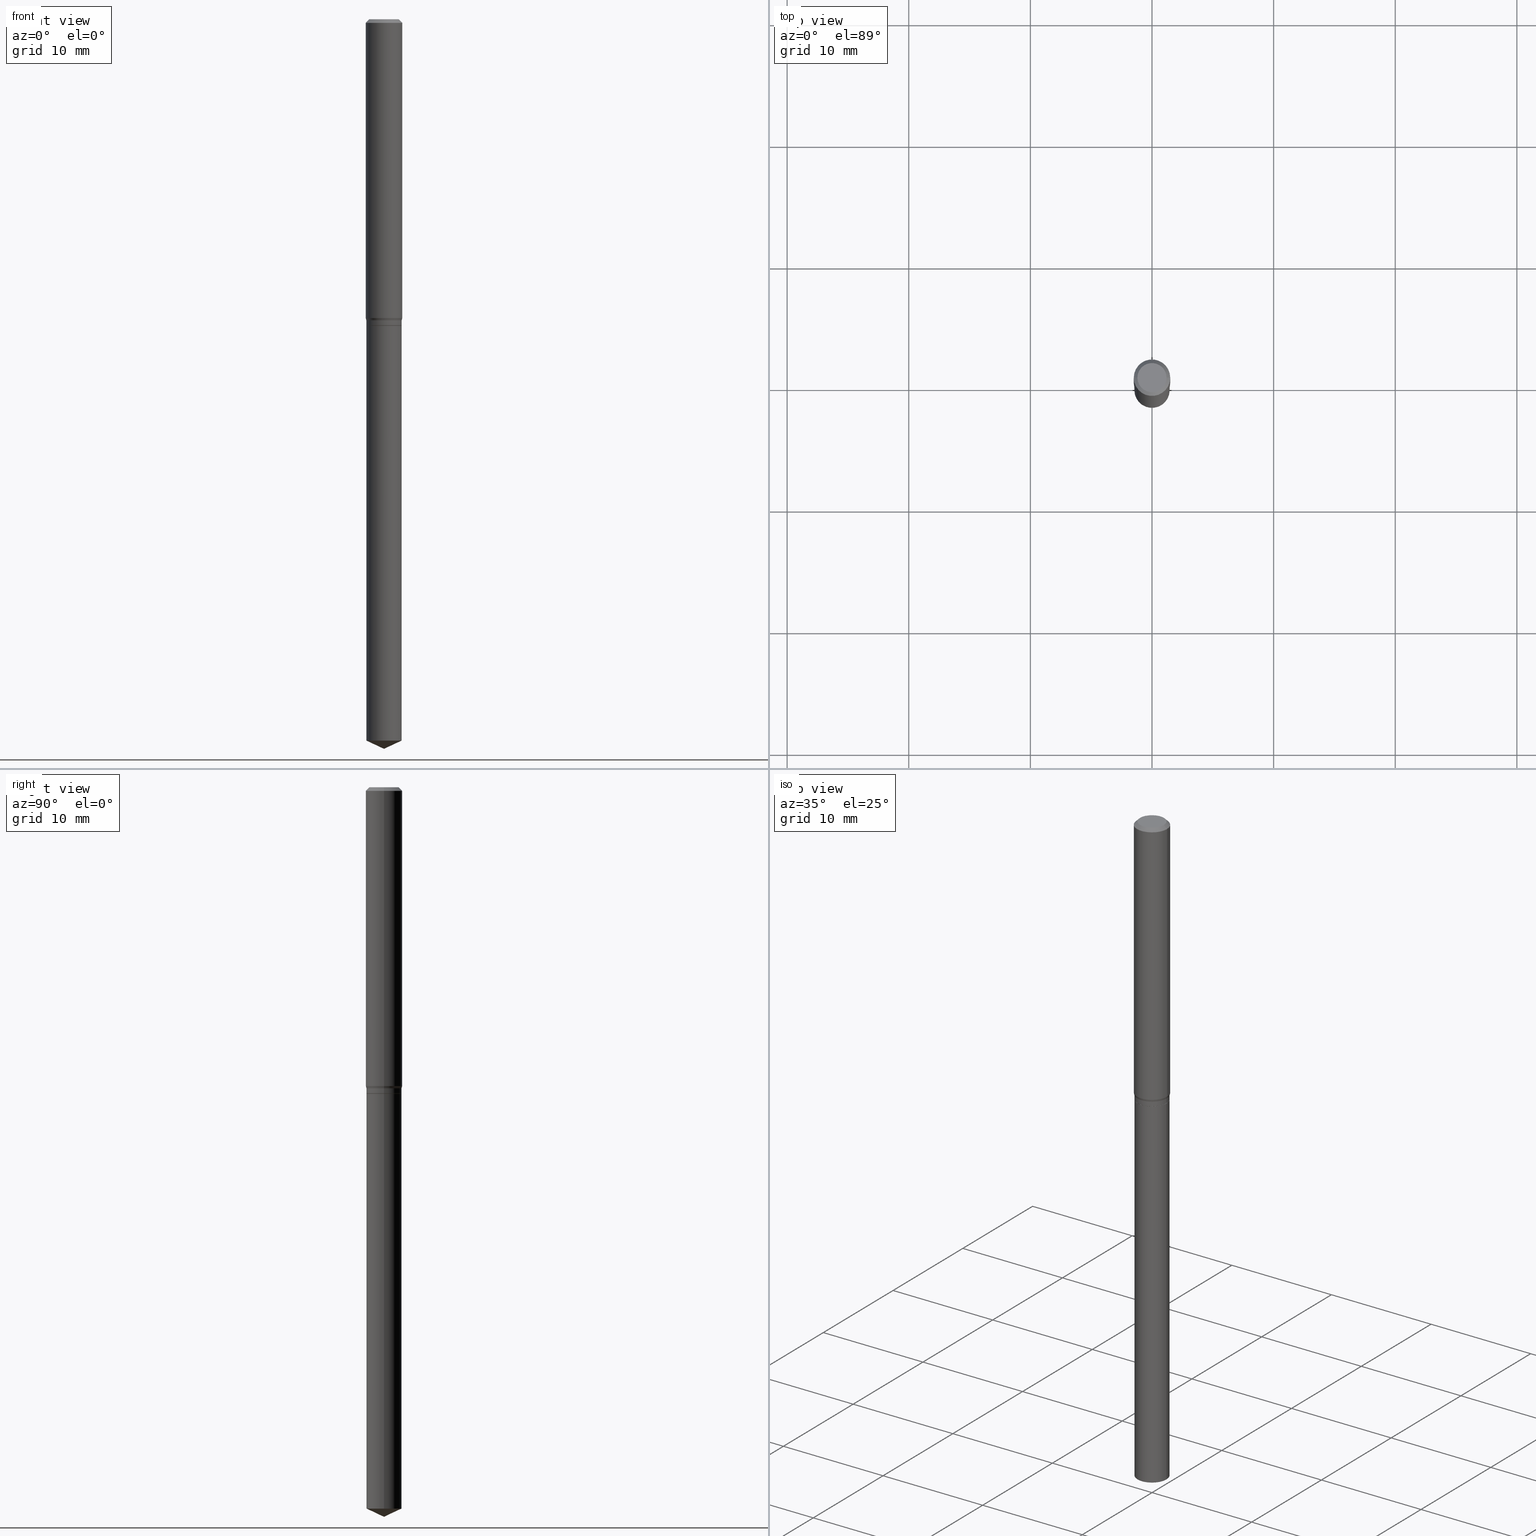
[diagram: canonical four-view strip — front | top / right | iso, engineering-drawing reading convention]
A machine part, canonical four-view strip (front | top / right | iso — engineering-drawing reading convention). The complete STEP part file that produces these views, byte-faithful:
ISO-10303-21;
HEADER;
FILE_DESCRIPTION (( 'STEP AP203' ),
    '1' );
FILE_NAME ('08406.STEP',
    '2024-04-24T14:58:37',
    ( '' ),
    ( '' ),
    'SwSTEP 2.0',
    'SolidWorks 2023',
    '' );
FILE_SCHEMA (( 'CONFIG_CONTROL_DESIGN' ));
ENDSEC;

DATA;
#1 = CYLINDRICAL_SURFACE ( 'NONE', #109, 0.05709999999999999798 ) ;
#2 = AXIS2_PLACEMENT_3D ( 'NONE', #426, #90, #272 ) ;
#3 = CYLINDRICAL_SURFACE ( 'NONE', #239, 0.05709999999999998410 ) ;
#4 = ORIENTED_EDGE ( 'NONE', *, *, #249, .T. ) ;
#5 = CARTESIAN_POINT ( 'NONE',  ( 0.05904999999999999832, -4.463468013801466955E-16, -0.01181000000000007218 ) ) ;
#6 = ORIENTED_EDGE ( 'NONE', *, *, #17, .F. ) ;
#7 = EDGE_LOOP ( 'NONE', ( #472, #25, #91, #388 ) ) ;
#8 = DIRECTION ( 'NONE',  ( 1.000000000000000000, -6.982962677686266711E-15, 0.000000000000000000 ) ) ;
#9 = CARTESIAN_POINT ( 'NONE',  ( 2.424437774451943550E-29, -3.461454599329093355E-15, -0.9913999999999996149 ) ) ;
#10 = EDGE_CURVE ( 'NONE', #432, #235, #270, .T. ) ;
#11 = PERSON_AND_ORGANIZATION_ROLE ( 'classification_officer' ) ;
#12 = LOCAL_TIME ( 10, 58, 37.00000000000000000, #464 ) ;
#13 = VECTOR ( 'NONE', #385, 39.37007874015748143 ) ;
#14 = ORIENTED_EDGE ( 'NONE', *, *, #451, .F. ) ;
#15 = PLANE ( 'NONE',  #460 ) ;
#16 = CC_DESIGN_DATE_AND_TIME_ASSIGNMENT ( #81, #420, ( #202 ) ) ;
#17 = EDGE_CURVE ( 'NONE', #242, #396, #438, .T. ) ;
#18 = ORIENTED_EDGE ( 'NONE', *, *, #57, .T. ) ;
#19 = PERSON_AND_ORGANIZATION ( #79, #424 ) ;
#20 = FACE_OUTER_BOUND ( 'NONE', #83, .T. ) ;
#21 = CIRCLE ( 'NONE', #179, 0.05659999999999999060 ) ;
#22 = DIRECTION ( 'NONE',  ( -2.445468806185136597E-29, 3.491481338843145583E-15, 1.000000000000000000 ) ) ;
#23 = AXIS2_PLACEMENT_3D ( 'NONE', #9, #345, #115 ) ;
#24 = DIRECTION ( 'NONE',  ( 0.000000000000000000, 0.000000000000000000, 1.000000000000000000 ) ) ;
#25 = ORIENTED_EDGE ( 'NONE', *, *, #10, .T. ) ;
#26 = APPLICATION_CONTEXT ( 'configuration controlled 3d designs of mechanical parts and assemblies' ) ;
#27 = DIRECTION ( 'NONE',  ( 1.000000000000000000, -6.982962677686261977E-15, 0.000000000000000000 ) ) ;
#28 = EDGE_CURVE ( 'NONE', #418, #160, #77, .T. ) ;
#29 = CC_DESIGN_APPROVAL ( #415, ( #341 ) ) ;
#30 = AXIS2_PLACEMENT_3D ( 'NONE', #66, #189, #301 ) ;
#31 = PERSON_AND_ORGANIZATION ( #79, #424 ) ;
#32 = AXIS2_PLACEMENT_3D ( 'NONE', #191, #378, #34 ) ;
#33 = DIRECTION ( 'NONE',  ( -2.445468806185136597E-29, 3.491481338843145583E-15, 1.000000000000000000 ) ) ;
#34 = DIRECTION ( 'NONE',  ( -1.000000000000000000, 6.982962677686265922E-15, -4.876176775795935793E-29 ) ) ;
#35 = ADVANCED_FACE ( 'NONE', ( #20 ), #292, .T. ) ;
#36 = DIRECTION ( 'NONE',  ( 1.000000000000000000, -6.982962677686266711E-15, 0.000000000000000000 ) ) ;
#37 = CARTESIAN_POINT ( 'NONE',  ( -0.04724000000000000421, 3.504923541997677355E-16, -3.380025165670481712E-19 ) ) ;
#38 = EDGE_CURVE ( 'NONE', #160, #418, #97, .T. ) ;
#39 = CIRCLE ( 'NONE', #321, 0.05904999999999999832 ) ;
#40 = DIRECTION ( 'NONE',  ( 1.000000000000000000, -6.982962677686259611E-15, 0.000000000000000000 ) ) ;
#41 = DIRECTION ( 'NONE',  ( -1.000000000000000000, 6.982962677686265922E-15, -4.876176775795935793E-29 ) ) ;
#42 = ORIENTED_EDGE ( 'NONE', *, *, #347, .T. ) ;
#43 = CARTESIAN_POINT ( 'NONE',  ( -0.05904999999999999832, -1.290085090285191875E-15, -0.01181000000000007218 ) ) ;
#44 = ORIENTED_EDGE ( 'NONE', *, *, #159, .T. ) ;
#45 = DIRECTION ( 'NONE',  ( -2.445468806185136597E-29, 3.491481338843145583E-15, 1.000000000000000000 ) ) ;
#46 = DIRECTION ( 'NONE',  ( -2.445468806185136597E-29, 3.491481338843145583E-15, 1.000000000000000000 ) ) ;
#47 = APPROVAL_ROLE ( '' ) ;
#48 = EDGE_CURVE ( 'NONE', #356, #351, #323, .T. ) ;
#49 = ORIENTED_EDGE ( 'NONE', *, *, #89, .F. ) ;
#50 = CARTESIAN_POINT ( 'NONE',  ( 0.05905000000000006077, -4.123439461173744764E-16, 2.879382386107503023E-30 ) ) ;
#51 = PERSON_AND_ORGANIZATION ( #79, #424 ) ;
#52 = DIRECTION ( 'NONE',  ( 1.000000000000000000, -6.982962677686265922E-15, 4.876176775795935793E-29 ) ) ;
#53 = PRODUCT_DEFINITION_SHAPE ( 'NONE', 'NONE',  #456 ) ;
#54 = APPROVAL_ROLE ( '' ) ;
#55 = CARTESIAN_POINT ( 'NONE',  ( 2.425660508855035791E-29, -3.463200339998514464E-15, -0.9918999999999995598 ) ) ;
#56 = CARTESIAN_POINT ( 'NONE',  ( 2.888098660104664204E-31, -4.123439461173780263E-17, -0.01181000000000007218 ) ) ;
#57 = EDGE_CURVE ( 'NONE', #235, #432, #21, .T. ) ;
#58 = CIRCLE ( 'NONE', #264, 0.05904999999999999832 ) ;
#59 = ORIENTED_EDGE ( 'NONE', *, *, #139, .T. ) ;
#60 = PERSON_AND_ORGANIZATION ( #79, #424 ) ;
#61 = ORIENTED_EDGE ( 'NONE', *, *, #442, .T. ) ;
#62 = CARTESIAN_POINT ( 'NONE',  ( 8.265746106709734507E-48, -1.180129479067563789E-33, -3.380025165646692144E-19 ) ) ;
#63 = ORIENTED_EDGE ( 'NONE', *, *, #252, .F. ) ;
#64 = DIRECTION ( 'NONE',  ( 1.000000000000000000, -6.982962677686266711E-15, 0.000000000000000000 ) ) ;
#65 = CARTESIAN_POINT ( 'NONE',  ( 2.366046095294905252E-29, -3.378086756891326980E-15, -0.9675225009252403918 ) ) ;
#66 = CARTESIAN_POINT ( 'NONE',  ( 2.425660508855035791E-29, -3.463200339998514464E-15, -0.9918999999999995598 ) ) ;
#67 = DIRECTION ( 'NONE',  ( 0.7071067811865173747, -2.468850131081940727E-15, 0.7071067811865776598 ) ) ;
#68 = DIRECTION ( 'NONE',  ( 1.000000000000000000, -6.982962677686266711E-15, 0.000000000000000000 ) ) ;
#69 = CARTESIAN_POINT ( 'NONE',  ( 0.05709999999999998410, -3.987271688958857132E-16, 2.784296938979478528E-30 ) ) ;
#70 = DIMENSIONAL_EXPONENTS ( 1.000000000000000000, 0.000000000000000000, 0.000000000000000000, 0.000000000000000000, 0.000000000000000000, 0.000000000000000000, 0.000000000000000000 ) ;
#71 = AXIS2_PLACEMENT_3D ( 'NONE', #449, #149, #68 ) ;
#72 = CARTESIAN_POINT ( 'NONE',  ( 2.425660508855036352E-29, -3.463200339998515253E-15, -0.9918999999999997819 ) ) ;
#73 = FACE_OUTER_BOUND ( 'NONE', #129, .T. ) ;
#74 = CARTESIAN_POINT ( 'NONE',  ( 0.05659999999999999060, -3.858436027555557071E-15, -0.9918999999999995598 ) ) ;
#75 = CC_DESIGN_APPROVAL ( #278, ( #456 ) ) ;
#76 = CARTESIAN_POINT ( 'NONE',  ( 2.425660508855035791E-29, -3.463200339998514464E-15, -0.9918999999999995598 ) ) ;
#77 = CIRCLE ( 'NONE', #212, 0.05905000000000011628 ) ;
#78 = ORIENTED_EDGE ( 'NONE', *, *, #192, .T. ) ;
#79 = PERSON ( 'UNSPECIFIED', 'UNSPECIFIED', 'UNSPECIFIED', ('UNSPECIFIED'), ('UNSPECIFIED'), ('UNSPECIFIED') ) ;
#80 = DIRECTION ( 'NONE',  ( 1.000000000000000000, -6.982962677686266711E-15, 4.876185090822587894E-29 ) ) ;
#81 = DATE_AND_TIME ( #417, #476 ) ;
#82 = EDGE_CURVE ( 'NONE', #432, #402, #446, .T. ) ;
#83 = EDGE_LOOP ( 'NONE', ( #465, #125, #168, #480 ) ) ;
#84 = CARTESIAN_POINT ( 'NONE',  ( -0.05709999999999998410, -7.748194254043186871E-15, -2.335373832719350062 ) ) ;
#85 = EDGE_LOOP ( 'NONE', ( #277, #314, #327 ) ) ;
#86 = VECTOR ( 'NONE', #236, 39.37007874015748854 ) ;
#87 = LINE ( 'NONE', #419, #162 ) ;
#88 = CIRCLE ( 'NONE', #370, 0.05709999999999999798 ) ;
#89 = EDGE_CURVE ( 'NONE', #235, #363, #487, .T. ) ;
#90 = DIRECTION ( 'NONE',  ( -2.445468806185136597E-29, 3.491481338843145583E-15, 1.000000000000000000 ) ) ;
#91 = ORIENTED_EDGE ( 'NONE', *, *, #89, .T. ) ;
#92 = EDGE_CURVE ( 'NONE', #351, #371, #224, .T. ) ;
#93 = PRODUCT_RELATED_PRODUCT_CATEGORY ( 'detail', '', ( #461 ) ) ;
#94 = ORIENTED_EDGE ( 'NONE', *, *, #17, .T. ) ;
#95 = FACE_OUTER_BOUND ( 'NONE', #244, .T. ) ;
#96 = CALENDAR_DATE ( 2024, 24, 4 ) ;
#97 = CIRCLE ( 'NONE', #229, 0.05905000000000011628 ) ;
#98 = ORIENTED_EDGE ( 'NONE', *, *, #401, .F. ) ;
#99 = MECHANICAL_CONTEXT ( 'NONE', #184, 'mechanical' ) ;
#100 = ADVANCED_FACE ( 'NONE', ( #150 ), #247, .T. ) ;
#101 = ORIENTED_EDGE ( 'NONE', *, *, #82, .T. ) ;
#102 = DIRECTION ( 'NONE',  ( -2.445468806185136597E-29, 3.491481338843145583E-15, 1.000000000000000000 ) ) ;
#103 = ORIENTED_EDGE ( 'NONE', *, *, #322, .F. ) ;
#104 = CC_DESIGN_APPROVAL ( #433, ( #202 ) ) ;
#105 = FACE_OUTER_BOUND ( 'NONE', #7, .T. ) ;
#106 = CC_DESIGN_DATE_AND_TIME_ASSIGNMENT ( #389, #201, ( #456 ) ) ;
#107 = DIRECTION ( 'NONE',  ( -2.445468806185136597E-29, 3.491481338843145583E-15, 1.000000000000000000 ) ) ;
#108 = VECTOR ( 'NONE', #392, 39.37007874015748854 ) ;
#109 = AXIS2_PLACEMENT_3D ( 'NONE', #154, #454, #113 ) ;
#110 = EDGE_CURVE ( 'NONE', #363, #133, #489, .T. ) ;
#111 = DIRECTION ( 'NONE',  ( -2.445468806185136597E-29, 3.491481338843145583E-15, 1.000000000000000000 ) ) ;
#112 = MANIFOLD_SOLID_BREP ( 'Body-Move/Copy2[2]', #485 ) ;
#113 = DIRECTION ( 'NONE',  ( 1.000000000000000000, -6.982962677686268288E-15, 0.000000000000000000 ) ) ;
#114 = MANIFOLD_SOLID_BREP ( 'Body-Move/Copy2[1]', #220 ) ;
#115 = DIRECTION ( 'NONE',  ( 1.000000000000000000, -6.982962677686269866E-15, 0.000000000000000000 ) ) ;
#116 = VECTOR ( 'NONE', #473, 39.37007874015748143 ) ;
#117 = ORIENTED_EDGE ( 'NONE', *, *, #28, .T. ) ;
#118 = ADVANCED_FACE ( 'NONE', ( #226 ), #376, .F. ) ;
#119 = DIRECTION ( 'NONE',  ( -2.445468806185136877E-29, 3.491481338843145188E-15, 1.000000000000000000 ) ) ;
#120 = VECTOR ( 'NONE', #232, 39.37007874015748143 ) ;
#121 = DIRECTION ( 'NONE',  ( -2.445468806185136597E-29, 3.491481338843145583E-15, 1.000000000000000000 ) ) ;
#122 = EDGE_LOOP ( 'NONE', ( #222, #42, #207, #288 ) ) ;
#123 = CARTESIAN_POINT ( 'NONE',  ( 0.000000000000000000, 0.000000000000000000, 0.000000000000000000 ) ) ;
#124 = ADVANCED_FACE ( 'NONE', ( #452 ), #478, .T. ) ;
#125 = ORIENTED_EDGE ( 'NONE', *, *, #165, .T. ) ;
#126 = LINE ( 'NONE', #50, #120 ) ;
#127 = CALENDAR_DATE ( 2024, 24, 4 ) ;
#128 = ADVANCED_FACE ( 'NONE', ( #186 ), #412, .F. ) ;
#129 = EDGE_LOOP ( 'NONE', ( #274, #61, #457, #14 ) ) ;
#130 = DIRECTION ( 'NONE',  ( -2.445468806185136597E-29, 3.491481338843145583E-15, 1.000000000000000000 ) ) ;
#131 = AXIS2_PLACEMENT_3D ( 'NONE', #76, #381, #204 ) ;
#132 = EDGE_CURVE ( 'NONE', #133, #253, #271, .T. ) ;
#133 = VERTEX_POINT ( 'NONE', #273 ) ;
#134 =( CONVERSION_BASED_UNIT ( 'INCH', #326 ) LENGTH_UNIT ( ) NAMED_UNIT ( #70 ) );
#135 = ORIENTED_EDGE ( 'NONE', *, *, #192, .F. ) ;
#136 = FACE_OUTER_BOUND ( 'NONE', #172, .T. ) ;
#137 = COORDINATED_UNIVERSAL_TIME_OFFSET ( 5, 0, .BEHIND. ) ;
#138 = ORIENTED_EDGE ( 'NONE', *, *, #406, .T. ) ;
#139 = EDGE_CURVE ( 'NONE', #242, #344, #283, .T. ) ;
#140 = AXIS2_PLACEMENT_3D ( 'NONE', #72, #225, #337 ) ;
#141 = ORIENTED_EDGE ( 'NONE', *, *, #241, .F. ) ;
#142 = DIRECTION ( 'NONE',  ( 2.445468806185136597E-29, -3.491481338843145583E-15, -1.000000000000000000 ) ) ;
#143 = APPROVAL_DATE_TIME ( #298, #433 ) ;
#144 = DIRECTION ( 'NONE',  ( -2.445468806185136597E-29, 3.491481338843145583E-15, 1.000000000000000000 ) ) ;
#145 = DIRECTION ( 'NONE',  ( -1.000000000000000000, 6.982962677686266711E-15, 0.000000000000000000 ) ) ;
#146 = DESIGN_CONTEXT ( 'detailed design', #26, 'design' ) ;
#147 = CC_DESIGN_PERSON_AND_ORGANIZATION_ASSIGNMENT ( #467, #11, ( #202 ) ) ;
#148 = DIRECTION ( 'NONE',  ( 1.000000000000000000, -6.982962677686266711E-15, 0.000000000000000000 ) ) ;
#149 = DIRECTION ( 'NONE',  ( -2.445468806185136597E-29, 3.491481338843145583E-15, 1.000000000000000000 ) ) ;
#150 = FACE_OUTER_BOUND ( 'NONE', #245, .T. ) ;
#151 = LINE ( 'NONE', #373, #290 ) ;
#152 = AXIS2_PLACEMENT_3D ( 'NONE', #62, #293, #208 ) ;
#153 = CIRCLE ( 'NONE', #2, 0.05709999999999997716 ) ;
#154 = CARTESIAN_POINT ( 'NONE',  ( 2.425660508855036352E-29, -3.463200339998515253E-15, -0.9918999999999997819 ) ) ;
#155 = DIRECTION ( 'NONE',  ( 0.7071067811865453523, -7.319954787623248157E-15, -0.7071067811865496822 ) ) ;
#156 = ORIENTED_EDGE ( 'NONE', *, *, #57, .F. ) ;
#157 = CARTESIAN_POINT ( 'NONE',  ( 0.05904999999999999832, -4.535783407291118600E-16, -0.01181000000000007218 ) ) ;
#158 = CARTESIAN_POINT ( 'NONE',  ( 2.383842992269271566E-29, -3.403496009104299042E-15, -0.9748000000000002219 ) ) ;
#159 = EDGE_CURVE ( 'NONE', #351, #307, #342, .T. ) ;
#160 = VERTEX_POINT ( 'NONE', #300 ) ;
#161 = DIRECTION ( 'NONE',  ( 1.000000000000000000, -6.982962677686268288E-15, 0.000000000000000000 ) ) ;
#162 = VECTOR ( 'NONE', #119, 39.37007874015748143 ) ;
#163 = ORIENTED_EDGE ( 'NONE', *, *, #331, .T. ) ;
#164 = DIRECTION ( 'NONE',  ( 1.000000000000000000, -6.982962677686266711E-15, 4.876176775795935793E-29 ) ) ;
#165 = EDGE_CURVE ( 'NONE', #402, #253, #151, .T. ) ;
#166 = EDGE_LOOP ( 'NONE', ( #59, #138 ) ) ;
#167 = CARTESIAN_POINT ( 'NONE',  ( 5.776197320209293305E-29, -8.246878922347511025E-15, -2.362000000000000099 ) ) ;
#168 = ORIENTED_EDGE ( 'NONE', *, *, #132, .F. ) ;
#169 = FACE_OUTER_BOUND ( 'NONE', #210, .T. ) ;
#170 = VECTOR ( 'NONE', #372, 39.37007874015748143 ) ;
#171 = CONICAL_SURFACE ( 'NONE', #71, 84.42940631927518780, 1.134464013796319781 ) ;
#172 = EDGE_LOOP ( 'NONE', ( #284, #163, #183, #6 ) ) ;
#173 = DIRECTION ( 'NONE',  ( 1.000000000000000000, -6.982962677686266711E-15, 4.876176775795935793E-29 ) ) ;
#174 = DIRECTION ( 'NONE',  ( 1.000000000000000000, -6.982962677686269077E-15, 0.000000000000000000 ) ) ;
#175 = APPROVAL_STATUS ( 'not_yet_approved' ) ;
#176 = ORIENTED_EDGE ( 'NONE', *, *, #312, .T. ) ;
#177 = APPLICATION_PROTOCOL_DEFINITION ( 'international standard', 'config_control_design', 1994, #26 ) ;
#178 = APPROVAL_PERSON_ORGANIZATION ( #19, #278, #329 ) ;
#179 = AXIS2_PLACEMENT_3D ( 'NONE', #55, #361, #408 ) ;
#180 = ORIENTED_EDGE ( 'NONE', *, *, #252, .T. ) ;
#181 = DIRECTION ( 'NONE',  ( 1.000000000000000000, 0.000000000000000000, 0.000000000000000000 ) ) ;
#182 = ADVANCED_FACE ( 'NONE', ( #105 ), #194, .T. ) ;
#183 = ORIENTED_EDGE ( 'NONE', *, *, #302, .T. ) ;
#184 = APPLICATION_CONTEXT ( 'configuration controlled 3d designs of mechanical parts and assemblies' ) ;
#185 = ADVANCED_FACE ( 'NONE', ( #73 ), #490, .T. ) ;
#186 = FACE_OUTER_BOUND ( 'NONE', #364, .T. ) ;
#187 = CARTESIAN_POINT ( 'NONE',  ( 4.082567146417611291E-29, -1.090415729739685818E-15, -0.9918999999999995598 ) ) ;
#188 = VECTOR ( 'NONE', #260, 39.37007874015748143 ) ;
#189 = DIRECTION ( 'NONE',  ( -2.445468806185136597E-29, 3.491481338843145583E-15, 1.000000000000000000 ) ) ;
#190 = PERSON_AND_ORGANIZATION_ROLE ( 'creator' ) ;
#191 = CARTESIAN_POINT ( 'NONE',  ( 4.132873053354867254E-48, -5.900647395337818946E-34, -1.690012582823346072E-19 ) ) ;
#192 = EDGE_CURVE ( 'NONE', #396, #390, #58, .T. ) ;
#193 = DIRECTION ( 'NONE',  ( 1.000000000000000000, -6.982962677686269077E-15, 0.000000000000000000 ) ) ;
#194 = CONICAL_SURFACE ( 'NONE', #471, 0.05659999999999999060, 0.7853981633974056464 ) ;
#195 = CARTESIAN_POINT ( 'NONE',  ( -0.05709999999999997716, -3.026755402097678908E-15, -0.9748000000000002219 ) ) ;
#196 = ORIENTED_EDGE ( 'NONE', *, *, #359, .F. ) ;
#197 = DIRECTION ( 'NONE',  ( 1.000000000000000000, -6.982962677686266711E-15, 4.876176775795935793E-29 ) ) ;
#198 = ADVANCED_FACE ( 'NONE', ( #409 ), #171, .T. ) ;
#199 = ORIENTED_EDGE ( 'NONE', *, *, #302, .F. ) ;
#200 = FACE_OUTER_BOUND ( 'NONE', #85, .T. ) ;
#201 = DATE_TIME_ROLE ( 'creation_date' ) ;
#202 = SECURITY_CLASSIFICATION ( '', '', #459 ) ;
#203 = ORIENTED_EDGE ( 'NONE', *, *, #267, .T. ) ;
#204 = DIRECTION ( 'NONE',  ( 1.000000000000000000, -6.982962677686268288E-15, 0.000000000000000000 ) ) ;
#205 = ORIENTED_EDGE ( 'NONE', *, *, #267, .F. ) ;
#206 = PERSON_AND_ORGANIZATION_ROLE ( 'design_supplier' ) ;
#207 = ORIENTED_EDGE ( 'NONE', *, *, #451, .T. ) ;
#208 = DIRECTION ( 'NONE',  ( 1.000000000000000000, -6.982962677686266711E-15, 4.876185090822587894E-29 ) ) ;
#209 = PERSON_AND_ORGANIZATION_ROLE ( 'creator' ) ;
#210 = EDGE_LOOP ( 'NONE', ( #250, #319, #199, #205 ) ) ;
#211 = LOCAL_TIME ( 10, 58, 37.00000000000000000, #137 ) ;
#212 = AXIS2_PLACEMENT_3D ( 'NONE', #255, #332, #399 ) ;
#213 = ADVANCED_FACE ( 'NONE', ( #227 ), #411, .T. ) ;
#214 = ORIENTED_EDGE ( 'NONE', *, *, #48, .T. ) ;
#215 = PERSON_AND_ORGANIZATION_ROLE ( 'design_owner' ) ;
#216 = DIRECTION ( 'NONE',  ( -0.7071067811865453523, 2.468850131082234184E-15, -0.7071067811865496822 ) ) ;
#217 = LINE ( 'NONE', #289, #116 ) ;
#218 = VERTEX_POINT ( 'NONE', #262 ) ;
#219 = AXIS2_PLACEMENT_3D ( 'NONE', #349, #400, #64 ) ;
#220 = CLOSED_SHELL ( 'NONE', ( #223, #198, #404, #213, #128 ) ) ;
#221 = CIRCLE ( 'NONE', #375, 0.05709999999999999798 ) ;
#222 = ORIENTED_EDGE ( 'NONE', *, *, #442, .F. ) ;
#223 = ADVANCED_FACE ( 'NONE', ( #265 ), #1, .T. ) ;
#224 = LINE ( 'NONE', #257, #170 ) ;
#225 = DIRECTION ( 'NONE',  ( -2.445468806185136597E-29, 3.491481338843145583E-15, 1.000000000000000000 ) ) ;
#226 = FACE_OUTER_BOUND ( 'NONE', #166, .T. ) ;
#227 = FACE_OUTER_BOUND ( 'NONE', #474, .T. ) ;
#228 = DIRECTION ( 'NONE',  ( -2.445468806185136597E-29, 3.491481338843145583E-15, 1.000000000000000000 ) ) ;
#229 = AXIS2_PLACEMENT_3D ( 'NONE', #65, #482, #148 ) ;
#230 = AXIS2_PLACEMENT_3D ( 'NONE', #187, #470, #41 ) ;
#231 = LINE ( 'NONE', #167, #86 ) ;
#232 = DIRECTION ( 'NONE',  ( -2.445468806185136877E-29, 3.491481338843145188E-15, 1.000000000000000000 ) ) ;
#233 = DIRECTION ( 'NONE',  ( 1.000000000000000000, -6.982962677686261977E-15, 0.000000000000000000 ) ) ;
#234 = PERSON_AND_ORGANIZATION ( #79, #424 ) ;
#235 = VERTEX_POINT ( 'NONE', #74 ) ;
#236 = DIRECTION ( 'NONE',  ( 0.9063077870366522681, -4.853149677051413500E-15, 0.4226182617406944453 ) ) ;
#237 = ORIENTED_EDGE ( 'NONE', *, *, #165, .F. ) ;
#238 = AXIS2_PLACEMENT_3D ( 'NONE', #367, #144, #174 ) ;
#239 = AXIS2_PLACEMENT_3D ( 'NONE', #354, #275, #197 ) ;
#240 = CALENDAR_DATE ( 2024, 24, 4 ) ;
#241 = EDGE_CURVE ( 'NONE', #363, #402, #450, .T. ) ;
#242 = VERTEX_POINT ( 'NONE', #37 ) ;
#243 = CARTESIAN_POINT ( 'NONE',  ( 5.776197320209293305E-29, -8.246878922347511025E-15, -2.362000000000000099 ) ) ;
#244 = EDGE_LOOP ( 'NONE', ( #156, #468 ) ) ;
#245 = EDGE_LOOP ( 'NONE', ( #18, #101, #141, #49 ) ) ;
#246 = LINE ( 'NONE', #254, #328 ) ;
#247 = CONICAL_SURFACE ( 'NONE', #30, 0.05659999999999999060, 0.7853981633974056464 ) ;
#248 = CONICAL_SURFACE ( 'NONE', #440, 0.05904999999999999832, 0.7853981633974452814 ) ;
#249 = EDGE_CURVE ( 'NONE', #307, #351, #221, .T. ) ;
#250 = ORIENTED_EDGE ( 'NONE', *, *, #38, .T. ) ;
#251 = DIRECTION ( 'NONE',  ( 0.2588190451025196293, 1.565188264969636167E-15, 0.9659258262890685343 ) ) ;
#252 = EDGE_CURVE ( 'NONE', #307, #218, #87, .T. ) ;
#253 = VERTEX_POINT ( 'NONE', #195 ) ;
#254 = CARTESIAN_POINT ( 'NONE',  ( 0.05709999999999997716, -3.802223178000184656E-15, -0.9748000000000002219 ) ) ;
#255 = CARTESIAN_POINT ( 'NONE',  ( 2.366046095294905252E-29, -3.378086756891326980E-15, -0.9675225009252403918 ) ) ;
#256 = APPROVAL_PERSON_ORGANIZATION ( #51, #415, #54 ) ;
#257 = CARTESIAN_POINT ( 'NONE',  ( -0.05709999999999999798, -3.057480437879497765E-15, -0.9918999999999997819 ) ) ;
#258 = COORDINATED_UNIVERSAL_TIME_OFFSET ( 5, 0, .BEHIND. ) ;
#259 = CARTESIAN_POINT ( 'NONE',  ( 2.425660508855035791E-29, -3.463200339998514464E-15, -0.9918999999999995598 ) ) ;
#260 = DIRECTION ( 'NONE',  ( -2.445468806185136877E-29, 3.491481338843145188E-15, 1.000000000000000000 ) ) ;
#261 = CALENDAR_DATE ( 2024, 24, 4 ) ;
#262 = CARTESIAN_POINT ( 'NONE',  ( 0.05709999999999999798, -3.861927508894400867E-15, -0.9918999999999995598 ) ) ;
#263 = LOCAL_TIME ( 10, 58, 37.00000000000000000, #362 ) ;
#264 = AXIS2_PLACEMENT_3D ( 'NONE', #340, #338, #36 ) ;
#265 = FACE_OUTER_BOUND ( 'NONE', #348, .T. ) ;
#266 = CARTESIAN_POINT ( 'NONE',  ( 2.424437774451943550E-29, -3.461454599329093355E-15, -0.9913999999999996149 ) ) ;
#267 = EDGE_CURVE ( 'NONE', #160, #390, #126, .T. ) ;
#268 = CARTESIAN_POINT ( 'NONE',  ( 0.05709999999999998410, -3.860181768224979364E-15, -0.9913999999999996149 ) ) ;
#269 = AXIS2_PLACEMENT_3D ( 'NONE', #369, #24, #181 ) ;
#270 = CIRCLE ( 'NONE', #238, 0.05659999999999999060 ) ;
#271 = CIRCLE ( 'NONE', #304, 0.05709999999999997716 ) ;
#272 = DIRECTION ( 'NONE',  ( 1.000000000000000000, -6.982962677686261977E-15, 0.000000000000000000 ) ) ;
#273 = CARTESIAN_POINT ( 'NONE',  ( 0.05709999999999997716, -3.802223178000184656E-15, -0.9748000000000002219 ) ) ;
#274 = ORIENTED_EDGE ( 'NONE', *, *, #132, .T. ) ;
#275 = DIRECTION ( 'NONE',  ( -2.445468806185136597E-29, 3.491481338843145583E-15, 1.000000000000000000 ) ) ;
#276 = APPROVAL_STATUS ( 'not_yet_approved' ) ;
#277 = ORIENTED_EDGE ( 'NONE', *, *, #48, .F. ) ;
#278 = APPROVAL ( #175, 'UNSPECIFIED' ) ;
#279 = CIRCLE ( 'NONE', #152, 0.04724000000000000421 ) ;
#280 = EDGE_LOOP ( 'NONE', ( #427, #214, #285 ) ) ;
#281 = VECTOR ( 'NONE', #67, 39.37007874015748143 ) ;
#282 = CARTESIAN_POINT ( 'NONE',  ( 0.04724000000000000421, -3.852183633974369345E-16, -3.380025165621689721E-19 ) ) ;
#283 = CIRCLE ( 'NONE', #310, 0.04724000000000000421 ) ;
#284 = ORIENTED_EDGE ( 'NONE', *, *, #406, .F. ) ;
#285 = ORIENTED_EDGE ( 'NONE', *, *, #249, .F. ) ;
#286 = CC_DESIGN_PERSON_AND_ORGANIZATION_ASSIGNMENT ( #31, #190, ( #456 ) ) ;
#287 = ADVANCED_BREP_SHAPE_REPRESENTATION ( '08406', ( #114, #112, #269 ), #483 ) ;
#288 = ORIENTED_EDGE ( 'NONE', *, *, #28, .F. ) ;
#289 = CARTESIAN_POINT ( 'NONE',  ( -0.05709999999999997716, -2.997776106985281949E-15, -0.9748000000000002219 ) ) ;
#290 = VECTOR ( 'NONE', #377, 39.37007874015748143 ) ;
#291 = SHAPE_DEFINITION_REPRESENTATION ( #53, #287 ) ;
#292 = CYLINDRICAL_SURFACE ( 'NONE', #395, 0.05709999999999998410 ) ;
#293 = DIRECTION ( 'NONE',  ( -2.445468806185136597E-29, 3.491481338843145583E-15, 1.000000000000000000 ) ) ;
#294 = DIRECTION ( 'NONE',  ( 1.000000000000000000, -6.982962677686266711E-15, 4.876176775795935793E-29 ) ) ;
#295 = FACE_OUTER_BOUND ( 'NONE', #462, .T. ) ;
#296 = CARTESIAN_POINT ( 'NONE',  ( 5.776197320209293305E-29, -8.246878922347511025E-15, -2.362000000000000099 ) ) ;
#297 = CONICAL_SURFACE ( 'NONE', #394, 0.05904999999999999832, 0.7853981633974452814 ) ;
#298 = DATE_AND_TIME ( #96, #263 ) ;
#299 = CIRCLE ( 'NONE', #131, 0.05709999999999999798 ) ;
#300 = CARTESIAN_POINT ( 'NONE',  ( 0.05905000000000011628, -3.790430703008701506E-15, -0.9675225009252403918 ) ) ;
#301 = DIRECTION ( 'NONE',  ( 1.000000000000000000, -6.982962677686269077E-15, 0.000000000000000000 ) ) ;
#302 = EDGE_CURVE ( 'NONE', #390, #396, #39, .T. ) ;
#303 = CARTESIAN_POINT ( 'NONE',  ( 2.383842992269271566E-29, -3.403496009104299042E-15, -0.9748000000000002219 ) ) ;
#304 = AXIS2_PLACEMENT_3D ( 'NONE', #158, #121, #233 ) ;
#305 = ADVANCED_FACE ( 'NONE', ( #463 ), #3, .T. ) ;
#306 = CARTESIAN_POINT ( 'NONE',  ( 0.05709999999999998410, -8.552641325058090762E-15, -2.335373832719350062 ) ) ;
#307 = VERTEX_POINT ( 'NONE', #306 ) ;
#308 = FACE_OUTER_BOUND ( 'NONE', #429, .T. ) ;
#309 = PERSON_AND_ORGANIZATION ( #79, #424 ) ;
#310 = AXIS2_PLACEMENT_3D ( 'NONE', #383, #416, #80 ) ;
#311 = ORIENTED_EDGE ( 'NONE', *, *, #347, .F. ) ;
#312 = EDGE_CURVE ( 'NONE', #402, #363, #410, .T. ) ;
#313 = DATE_AND_TIME ( #127, #12 ) ;
#314 = ORIENTED_EDGE ( 'NONE', *, *, #318, .T. ) ;
#315 = DIRECTION ( 'NONE',  ( -2.445468806185136597E-29, 3.491481338843145583E-15, 1.000000000000000000 ) ) ;
#316 = CARTESIAN_POINT ( 'NONE',  ( 2.425660508855035791E-29, -3.463200339998514464E-15, -0.9918999999999995598 ) ) ;
#317 = PERSON_AND_ORGANIZATION ( #79, #424 ) ;
#318 = EDGE_CURVE ( 'NONE', #356, #307, #231, .T. ) ;
#319 = ORIENTED_EDGE ( 'NONE', *, *, #359, .T. ) ;
#320 =( NAMED_UNIT ( * ) PLANE_ANGLE_UNIT ( ) SI_UNIT ( $, .RADIAN. ) );
#321 = AXIS2_PLACEMENT_3D ( 'NONE', #343, #130, #8 ) ;
#322 = EDGE_CURVE ( 'NONE', #218, #371, #88, .T. ) ;
#323 = LINE ( 'NONE', #296, #108 ) ;
#324 = DIRECTION ( 'NONE',  ( -1.000000000000000000, 6.982962677686266711E-15, 0.000000000000000000 ) ) ;
#325 = ORIENTED_EDGE ( 'NONE', *, *, #110, .T. ) ;
#326 = LENGTH_MEASURE_WITH_UNIT ( LENGTH_MEASURE( 0.02539999999999999897 ), #439 );
#327 = ORIENTED_EDGE ( 'NONE', *, *, #159, .F. ) ;
#328 = VECTOR ( 'NONE', #251, 39.37007874015748143 ) ;
#329 = APPROVAL_ROLE ( '' ) ;
#330 = VECTOR ( 'NONE', #216, 39.37007874015748143 ) ;
#331 = EDGE_CURVE ( 'NONE', #344, #390, #469, .T. ) ;
#332 = DIRECTION ( 'NONE',  ( -2.445468806185136597E-29, 3.491481338843145583E-15, 1.000000000000000000 ) ) ;
#333 = UNCERTAINTY_MEASURE_WITH_UNIT (LENGTH_MEASURE( 1.000000000000000082E-05 ), #134, 'distance_accuracy_value', 'NONE');
#334 = CARTESIAN_POINT ( 'NONE',  ( -0.05904999999999999832, 3.711095515056362547E-16, -0.01181000000000007218 ) ) ;
#335 = CARTESIAN_POINT ( 'NONE',  ( 5.711083858696195473E-29, -8.153914156162205147E-15, -2.335373832719350062 ) ) ;
#336 = AXIS2_PLACEMENT_3D ( 'NONE', #441, #111, #27 ) ;
#337 = DIRECTION ( 'NONE',  ( 1.000000000000000000, -6.982962677686268288E-15, 0.000000000000000000 ) ) ;
#338 = DIRECTION ( 'NONE',  ( -2.445468806185136597E-29, 3.491481338843145583E-15, 1.000000000000000000 ) ) ;
#339 = DATE_AND_TIME ( #261, #386 ) ;
#340 = CARTESIAN_POINT ( 'NONE',  ( 2.888098660104664204E-31, -4.123439461173780263E-17, -0.01181000000000007218 ) ) ;
#341 = PRODUCT_DEFINITION_FORMATION_WITH_SPECIFIED_SOURCE ( 'ANY', '', #461, .NOT_KNOWN. ) ;
#342 = CIRCLE ( 'NONE', #405, 0.05709999999999999798 ) ;
#343 = CARTESIAN_POINT ( 'NONE',  ( 2.888098660104664204E-31, -4.123439461173780263E-17, -0.01181000000000007218 ) ) ;
#344 = VERTEX_POINT ( 'NONE', #282 ) ;
#345 = DIRECTION ( 'NONE',  ( -2.445468806185136597E-29, 3.491481338843145583E-15, 1.000000000000000000 ) ) ;
#346 = APPROVAL_DATE_TIME ( #313, #415 ) ;
#347 = EDGE_CURVE ( 'NONE', #253, #133, #153, .T. ) ;
#348 = EDGE_LOOP ( 'NONE', ( #4, #353, #103, #63 ) ) ;
#349 = CARTESIAN_POINT ( 'NONE',  ( -9.050210213589845843E-28, 1.292130163076976058E-13, 37.00807874015747956 ) ) ;
#350 = CARTESIAN_POINT ( 'NONE',  ( 5.711083858696195473E-29, -8.153914156162205147E-15, -2.335373832719350062 ) ) ;
#351 = VERTEX_POINT ( 'NONE', #84 ) ;
#352 = CARTESIAN_POINT ( 'NONE',  ( -0.05709999999999998410, -3.026755402097678908E-15, -0.9913999999999996149 ) ) ;
#353 = ORIENTED_EDGE ( 'NONE', *, *, #92, .T. ) ;
#354 = CARTESIAN_POINT ( 'NONE',  ( 0.000000000000000000, 0.000000000000000000, 0.000000000000000000 ) ) ;
#355 = APPROVAL_STATUS ( 'not_yet_approved' ) ;
#356 = VERTEX_POINT ( 'NONE', #243 ) ;
#357 = CYLINDRICAL_SURFACE ( 'NONE', #374, 0.05905000000000006077 ) ;
#358 = COORDINATED_UNIVERSAL_TIME_OFFSET ( 5, 0, .BEHIND. ) ;
#359 = EDGE_CURVE ( 'NONE', #418, #396, #382, .T. ) ;
#360 = CC_DESIGN_SECURITY_CLASSIFICATION ( #202, ( #341 ) ) ;
#361 = DIRECTION ( 'NONE',  ( -2.445468806185136597E-29, 3.491481338843145583E-15, 1.000000000000000000 ) ) ;
#362 = COORDINATED_UNIVERSAL_TIME_OFFSET ( 5, 0, .BEHIND. ) ;
#363 = VERTEX_POINT ( 'NONE', #268 ) ;
#364 = EDGE_LOOP ( 'NONE', ( #421, #414 ) ) ;
#365 = CARTESIAN_POINT ( 'NONE',  ( 0.000000000000000000, 0.000000000000000000, 0.000000000000000000 ) ) ;
#366 = AXIS2_PLACEMENT_3D ( 'NONE', #303, #33, #407 ) ;
#367 = CARTESIAN_POINT ( 'NONE',  ( 2.425660508855035791E-29, -3.463200339998514464E-15, -0.9918999999999995598 ) ) ;
#368 = CC_DESIGN_PERSON_AND_ORGANIZATION_ASSIGNMENT ( #60, #215, ( #461 ) ) ;
#369 = CARTESIAN_POINT ( 'NONE',  ( 0.000000000000000000, 0.000000000000000000, 0.000000000000000000 ) ) ;
#370 = AXIS2_PLACEMENT_3D ( 'NONE', #316, #315, #161 ) ;
#371 = VERTEX_POINT ( 'NONE', #413 ) ;
#372 = DIRECTION ( 'NONE',  ( -2.445468806185136877E-29, 3.491481338843145188E-15, 1.000000000000000000 ) ) ;
#373 = CARTESIAN_POINT ( 'NONE',  ( -0.05709999999999998410, 4.057199021190170932E-16, -2.808711936535550240E-30 ) ) ;
#374 = AXIS2_PLACEMENT_3D ( 'NONE', #365, #102, #173 ) ;
#375 = AXIS2_PLACEMENT_3D ( 'NONE', #335, #422, #40 ) ;
#376 = PLANE ( 'NONE',  #32 ) ;
#377 = DIRECTION ( 'NONE',  ( -2.445468806185136877E-29, 3.491481338843145188E-15, 1.000000000000000000 ) ) ;
#378 = DIRECTION ( 'NONE',  ( 2.438088387897960049E-29, -3.491481338843145188E-15, -1.000000000000000000 ) ) ;
#379 = CC_DESIGN_PERSON_AND_ORGANIZATION_ASSIGNMENT ( #317, #209, ( #341 ) ) ;
#380 = DIRECTION ( 'NONE',  ( 1.000000000000000000, -6.982962677686269866E-15, 0.000000000000000000 ) ) ;
#381 = DIRECTION ( 'NONE',  ( -2.445468806185136597E-29, 3.491481338843145583E-15, 1.000000000000000000 ) ) ;
#382 = LINE ( 'NONE', #455, #13 ) ;
#383 = CARTESIAN_POINT ( 'NONE',  ( 8.265746106709734507E-48, -1.180129479067563789E-33, -3.380025165646692144E-19 ) ) ;
#384 = ORIENTED_EDGE ( 'NONE', *, *, #139, .F. ) ;
#385 = DIRECTION ( 'NONE',  ( -2.445468806185136877E-29, 3.491481338843145188E-15, 1.000000000000000000 ) ) ;
#386 = LOCAL_TIME ( 10, 58, 37.00000000000000000, #258 ) ;
#387 = AXIS2_PLACEMENT_3D ( 'NONE', #266, #228, #380 ) ;
#388 = ORIENTED_EDGE ( 'NONE', *, *, #312, .F. ) ;
#389 = DATE_AND_TIME ( #240, #211 ) ;
#390 = VERTEX_POINT ( 'NONE', #157 ) ;
#391 = ADVANCED_FACE ( 'NONE', ( #308 ), #458, .T. ) ;
#392 = DIRECTION ( 'NONE',  ( -0.9063077870366522681, 7.915267918739014631E-15, 0.4226182617406944453 ) ) ;
#393 = APPLICATION_PROTOCOL_DEFINITION ( 'international standard', 'config_control_design', 1994, #184 ) ;
#394 = AXIS2_PLACEMENT_3D ( 'NONE', #56, #428, #324 ) ;
#395 = AXIS2_PLACEMENT_3D ( 'NONE', #435, #22, #294 ) ;
#396 = VERTEX_POINT ( 'NONE', #43 ) ;
#397 = AXIS2_PLACEMENT_3D ( 'NONE', #123, #45, #164 ) ;
#398 = CARTESIAN_POINT ( 'NONE',  ( -0.05659999999999999060, -3.058383924384186674E-15, -0.9918999999999995598 ) ) ;
#399 = DIRECTION ( 'NONE',  ( 1.000000000000000000, -6.982962677686266711E-15, 0.000000000000000000 ) ) ;
#400 = DIRECTION ( 'NONE',  ( -2.445468806185136597E-29, 3.491481338843145583E-15, 1.000000000000000000 ) ) ;
#401 = EDGE_CURVE ( 'NONE', #371, #218, #299, .T. ) ;
#402 = VERTEX_POINT ( 'NONE', #352 ) ;
#403 = ORIENTED_EDGE ( 'NONE', *, *, #331, .F. ) ;
#404 = ADVANCED_FACE ( 'NONE', ( #200 ), #423, .T. ) ;
#405 = AXIS2_PLACEMENT_3D ( 'NONE', #350, #46, #443 ) ;
#406 = EDGE_CURVE ( 'NONE', #344, #242, #279, .T. ) ;
#407 = DIRECTION ( 'NONE',  ( 1.000000000000000000, -6.982962677686261977E-15, 0.000000000000000000 ) ) ;
#408 = DIRECTION ( 'NONE',  ( 1.000000000000000000, -6.982962677686269077E-15, 0.000000000000000000 ) ) ;
#409 = FACE_OUTER_BOUND ( 'NONE', #280, .T. ) ;
#410 = CIRCLE ( 'NONE', #23, 0.05709999999999998410 ) ;
#411 = CYLINDRICAL_SURFACE ( 'NONE', #140, 0.05709999999999999798 ) ;
#412 = PLANE ( 'NONE',  #230 ) ;
#413 = CARTESIAN_POINT ( 'NONE',  ( -0.05709999999999999798, -5.402837345961341135E-15, -0.9918999999999995598 ) ) ;
#414 = ORIENTED_EDGE ( 'NONE', *, *, #401, .T. ) ;
#415 = APPROVAL ( #355, 'UNSPECIFIED' ) ;
#416 = DIRECTION ( 'NONE',  ( -2.445468806185136597E-29, 3.491481338843145583E-15, 1.000000000000000000 ) ) ;
#417 = CALENDAR_DATE ( 2024, 24, 4 ) ;
#418 = VERTEX_POINT ( 'NONE', #479 ) ;
#419 = CARTESIAN_POINT ( 'NONE',  ( 0.05709999999999999798, -3.861927508894400867E-15, -0.9918999999999997819 ) ) ;
#420 = DATE_TIME_ROLE ( 'classification_date' ) ;
#421 = ORIENTED_EDGE ( 'NONE', *, *, #322, .T. ) ;
#422 = DIRECTION ( 'NONE',  ( -2.445468806185136597E-29, 3.491481338843145583E-15, 1.000000000000000000 ) ) ;
#423 = CONICAL_SURFACE ( 'NONE', #219, 84.42940631927518780, 1.134464013796319781 ) ;
#424 = ORGANIZATION ( 'UNSPECIFIED', 'UNSPECIFIED', '' ) ;
#425 = VECTOR ( 'NONE', #486, 39.37007874015748143 ) ;
#426 = CARTESIAN_POINT ( 'NONE',  ( 2.383842992269271566E-29, -3.403496009104299042E-15, -0.9748000000000002219 ) ) ;
#427 = ORIENTED_EDGE ( 'NONE', *, *, #318, .F. ) ;
#428 = DIRECTION ( 'NONE',  ( 2.445468806185136597E-29, -3.491481338843145583E-15, -1.000000000000000000 ) ) ;
#429 = EDGE_LOOP ( 'NONE', ( #196, #117, #203, #135 ) ) ;
#430 = DIRECTION ( 'NONE',  ( -2.438088387897960049E-29, 3.491481338843145188E-15, 1.000000000000000000 ) ) ;
#431 = ADVANCED_FACE ( 'NONE', ( #136 ), #248, .T. ) ;
#432 = VERTEX_POINT ( 'NONE', #398 ) ;
#433 = APPROVAL ( #276, 'UNSPECIFIED' ) ;
#434 =( NAMED_UNIT ( * ) SI_UNIT ( $, .STERADIAN. ) SOLID_ANGLE_UNIT ( ) );
#435 = CARTESIAN_POINT ( 'NONE',  ( 0.000000000000000000, 0.000000000000000000, 0.000000000000000000 ) ) ;
#436 = CARTESIAN_POINT ( 'NONE',  ( 2.888098660104664204E-31, -4.123439461173780263E-17, -0.01181000000000007218 ) ) ;
#437 = ADVANCED_FACE ( 'NONE', ( #95 ), #15, .F. ) ;
#438 = LINE ( 'NONE', #334, #330 ) ;
#439 =( LENGTH_UNIT ( ) NAMED_UNIT ( * ) SI_UNIT ( $, .METRE. ) );
#440 = AXIS2_PLACEMENT_3D ( 'NONE', #436, #142, #145 ) ;
#441 = CARTESIAN_POINT ( 'NONE',  ( 2.383842992269271566E-29, -3.403496009104299042E-15, -0.9748000000000002219 ) ) ;
#442 = EDGE_CURVE ( 'NONE', #253, #418, #217, .T. ) ;
#443 = DIRECTION ( 'NONE',  ( 1.000000000000000000, -6.982962677686259611E-15, 0.000000000000000000 ) ) ;
#444 = VECTOR ( 'NONE', #155, 39.37007874015748143 ) ;
#445 = CARTESIAN_POINT ( 'NONE',  ( 0.05659999999999999060, -3.858436027555557071E-15, -0.9918999999999995598 ) ) ;
#446 = LINE ( 'NONE', #484, #425 ) ;
#447 = ADVANCED_FACE ( 'NONE', ( #169 ), #357, .T. ) ;
#448 = APPROVAL_PERSON_ORGANIZATION ( #234, #433, #47 ) ;
#449 = CARTESIAN_POINT ( 'NONE',  ( -9.050210213589845843E-28, 1.292130163076976058E-13, 37.00807874015747956 ) ) ;
#450 = CIRCLE ( 'NONE', #387, 0.05709999999999998410 ) ;
#451 = EDGE_CURVE ( 'NONE', #133, #160, #246, .T. ) ;
#452 = FACE_OUTER_BOUND ( 'NONE', #122, .T. ) ;
#453 = APPROVAL_DATE_TIME ( #339, #278 ) ;
#454 = DIRECTION ( 'NONE',  ( -2.445468806185136597E-29, 3.491481338843145583E-15, 1.000000000000000000 ) ) ;
#455 = CARTESIAN_POINT ( 'NONE',  ( -0.05905000000000006077, 4.195754854663395916E-16, -2.904631170795524694E-30 ) ) ;
#456 = PRODUCT_DEFINITION ( 'UNKNOWN', '', #341, #146 ) ;
#457 = ORIENTED_EDGE ( 'NONE', *, *, #38, .F. ) ;
#458 = CYLINDRICAL_SURFACE ( 'NONE', #397, 0.05905000000000006077 ) ;
#459 = SECURITY_CLASSIFICATION_LEVEL ( 'unclassified' ) ;
#460 = AXIS2_PLACEMENT_3D ( 'NONE', #481, #430, #52 ) ;
#461 = PRODUCT ( '08406', '08406', '', ( #99 ) ) ;
#462 = EDGE_LOOP ( 'NONE', ( #403, #384, #94, #78 ) ) ;
#463 = FACE_OUTER_BOUND ( 'NONE', #477, .T. ) ;
#464 = COORDINATED_UNIVERSAL_TIME_OFFSET ( 5, 0, .BEHIND. ) ;
#465 = ORIENTED_EDGE ( 'NONE', *, *, #241, .T. ) ;
#466 = CC_DESIGN_PERSON_AND_ORGANIZATION_ASSIGNMENT ( #309, #206, ( #341 ) ) ;
#467 = PERSON_AND_ORGANIZATION ( #79, #424 ) ;
#468 = ORIENTED_EDGE ( 'NONE', *, *, #10, .F. ) ;
#469 = LINE ( 'NONE', #5, #444 ) ;
#470 = DIRECTION ( 'NONE',  ( 2.438088387897960049E-29, -3.491481338843145188E-15, -1.000000000000000000 ) ) ;
#471 = AXIS2_PLACEMENT_3D ( 'NONE', #259, #107, #193 ) ;
#472 = ORIENTED_EDGE ( 'NONE', *, *, #82, .F. ) ;
#473 = DIRECTION ( 'NONE',  ( -0.2588190451025196293, 5.211531920934539209E-15, 0.9659258262890685343 ) ) ;
#474 = EDGE_LOOP ( 'NONE', ( #475, #44, #180, #98 ) ) ;
#475 = ORIENTED_EDGE ( 'NONE', *, *, #92, .F. ) ;
#476 = LOCAL_TIME ( 10, 58, 37.00000000000000000, #358 ) ;
#477 = EDGE_LOOP ( 'NONE', ( #237, #176, #325, #311 ) ) ;
#478 = CONICAL_SURFACE ( 'NONE', #336, 0.05709999999999997716, 0.2617993877991482421 ) ;
#479 = CARTESIAN_POINT ( 'NONE',  ( -0.05905000000000011628, -2.958511271424986698E-15, -0.9675225009252403918 ) ) ;
#480 = ORIENTED_EDGE ( 'NONE', *, *, #110, .F. ) ;
#481 = CARTESIAN_POINT ( 'NONE',  ( 2.425660508855035791E-29, -3.463200339998514464E-15, -0.9918999999999995598 ) ) ;
#482 = DIRECTION ( 'NONE',  ( -2.445468806185136597E-29, 3.491481338843145583E-15, 1.000000000000000000 ) ) ;
#483 =( GEOMETRIC_REPRESENTATION_CONTEXT ( 3 ) GLOBAL_UNCERTAINTY_ASSIGNED_CONTEXT ( ( #333 ) ) GLOBAL_UNIT_ASSIGNED_CONTEXT ( ( #134, #320, #434 ) ) REPRESENTATION_CONTEXT ( 'NONE', 'WORKASPACE' ) );
#484 = CARTESIAN_POINT ( 'NONE',  ( -0.05659999999999999060, -3.061033151558297875E-15, -0.9918999999999995598 ) ) ;
#485 = CLOSED_SHELL ( 'NONE', ( #100, #431, #447, #185, #35, #305, #124, #391, #488, #118, #437, #182 ) ) ;
#486 = DIRECTION ( 'NONE',  ( -0.7071067811865173747, 7.493145998870245297E-15, 0.7071067811865776598 ) ) ;
#487 = LINE ( 'NONE', #445, #281 ) ;
#488 = ADVANCED_FACE ( 'NONE', ( #295 ), #297, .T. ) ;
#489 = LINE ( 'NONE', #69, #188 ) ;
#490 = CONICAL_SURFACE ( 'NONE', #366, 0.05709999999999997716, 0.2617993877991482421 ) ;
ENDSEC;
END-ISO-10303-21;
